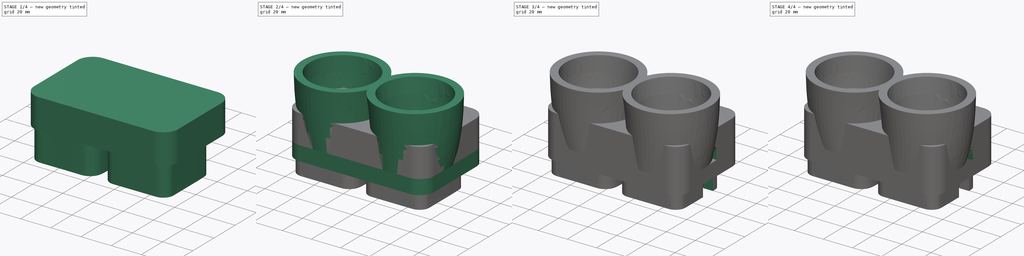
[diagram: build sequence overview — one tinted view per stage of 4, left to right]
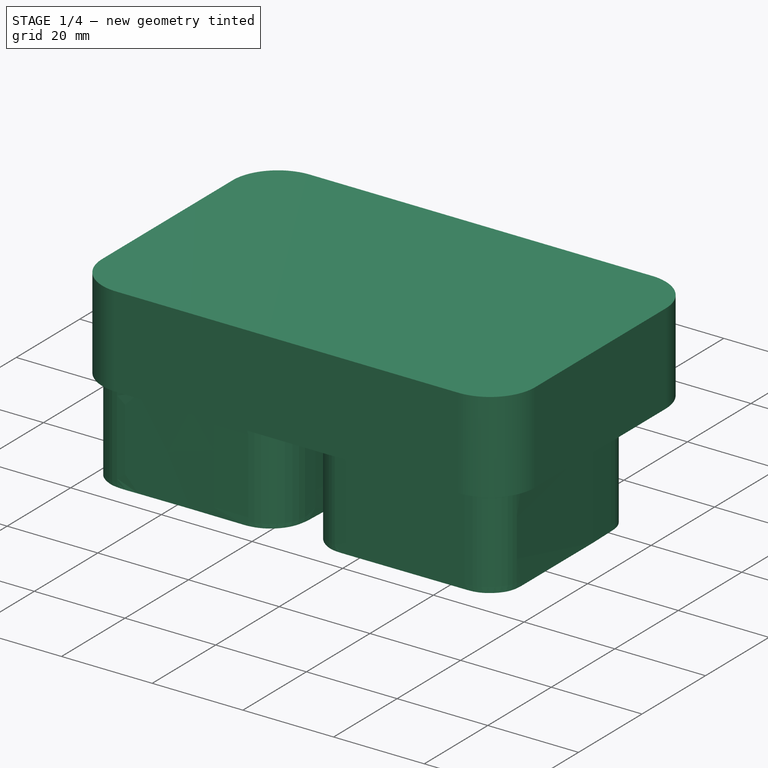
[diagram: stage 1 of 4 — iso view after this stage's code; geometry added in this stage tinted green]
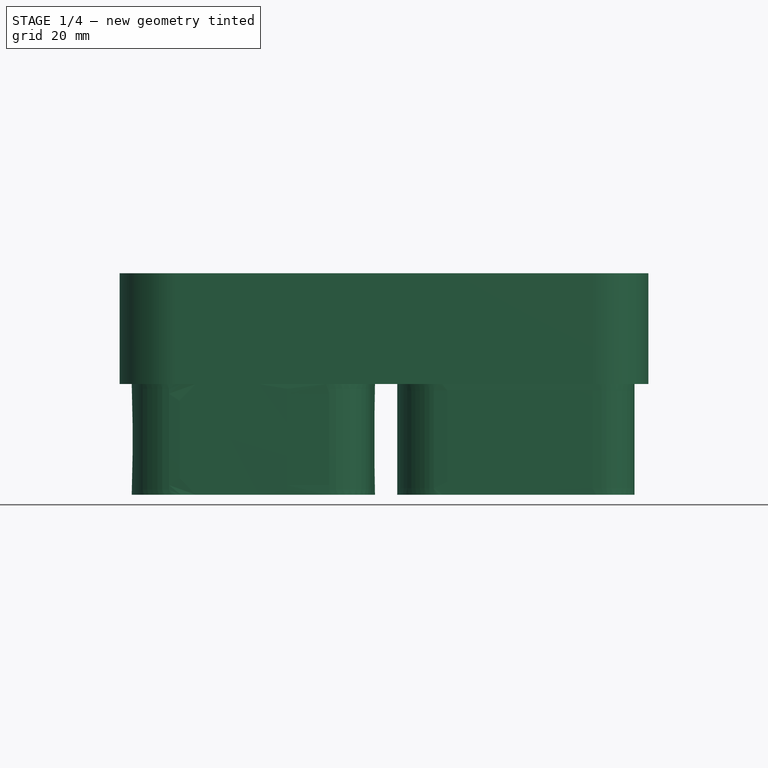
[diagram: stage 1 of 4 — front view after this stage's code; geometry added in this stage tinted green]
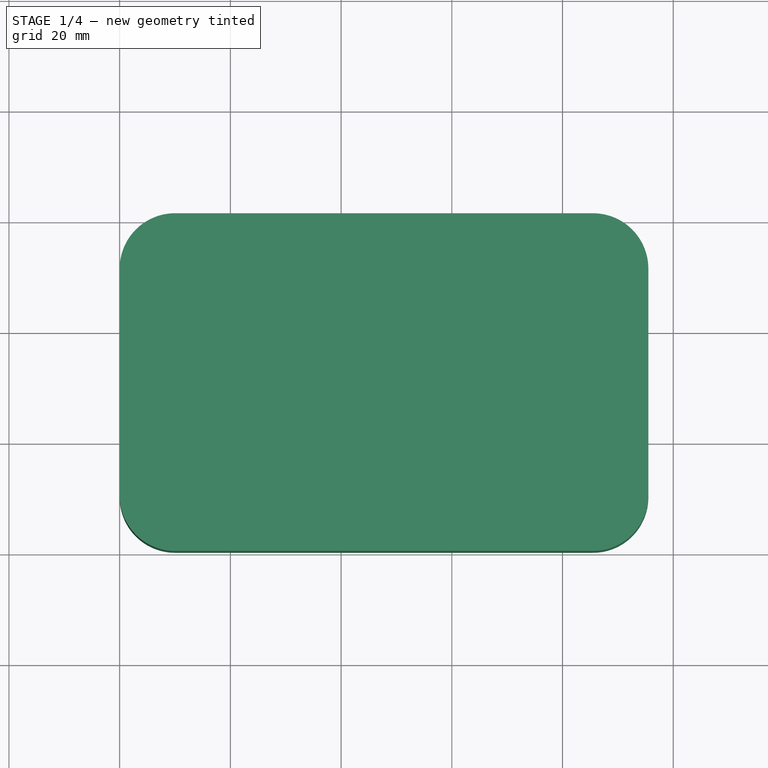
[diagram: stage 1 of 4 — top view after this stage's code; geometry added in this stage tinted green]
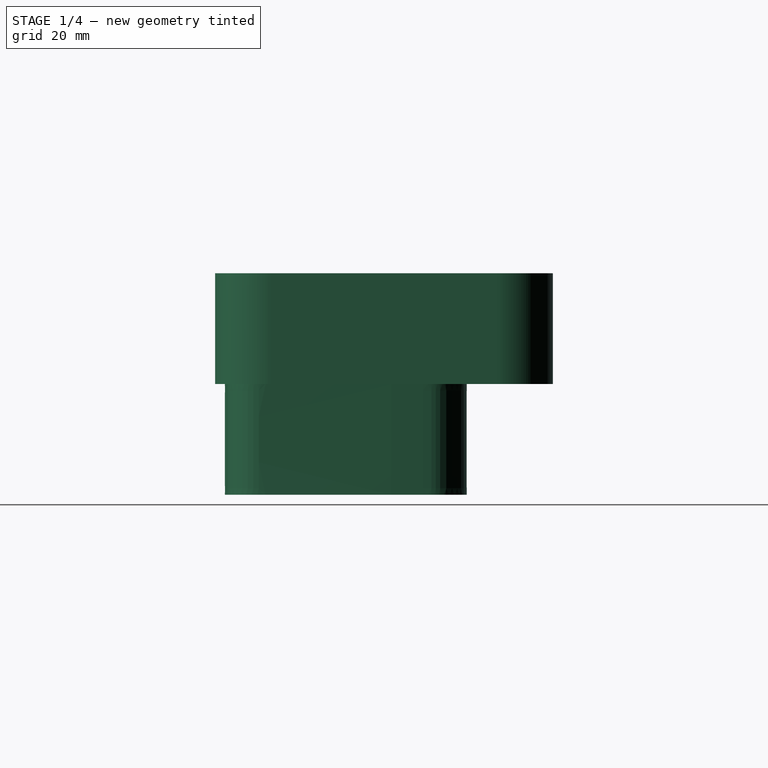
[diagram: stage 1 of 4 — right view after this stage's code; geometry added in this stage tinted green]
FCSTD DOCUMENT  (FreeCAD 0.22R36526 (Git))
Label: Weber3236Adaptor3
License: All rights reserved
LicenseURL: http://en.wikipedia.org/wiki/All_rights_reserved
objects: Sketcher::SketchObject×14, PartDesign::Pad×4, PartDesign::Pocket×4, PartDesign::Body×2, PartDesign::AdditiveLoft×2
note: 36 computed .brp shape members not serialized (recipe doc carries the construction recipe); baked Part::Feature solids carry a one-line shape summary decoded from their .brp

FEATURE [Sketcher::SketchObject] Sketch009  label="TopSurface"
  AttachmentSupport = -> [XY_Plane002]
  FullyConstrained = true
  MapMode = 5
  sketch-geometry (10):
    g0: LineSegment StartX=10 StartY=0 StartZ=0 EndX=85.5 EndY=0 EndZ=0
    g1: LineSegment StartX=95.5 StartY=10 StartZ=0 EndX=95.5 EndY=51 EndZ=0
    g2: LineSegment StartX=85.5 StartY=61 StartZ=0 EndX=10 EndY=61 EndZ=0
    g3: LineSegment StartX=0 StartY=51 StartZ=0 EndX=0 EndY=10 EndZ=0
    g4: ArcOfCircle CenterX=10 CenterY=10 CenterZ=0 NormalX=0 NormalY=0 NormalZ=1 AngleXU=0 Radius=10 StartAngle=3.14159 EndAngle=4.71239
    g5: ArcOfCircle CenterX=85.5 CenterY=10 CenterZ=0 NormalX=0 NormalY=0 NormalZ=1 AngleXU=0 Radius=10 StartAngle=4.71239 EndAngle=6.28319
    g6: ArcOfCircle CenterX=85.5 CenterY=51 CenterZ=0 NormalX=0 NormalY=0 NormalZ=1 AngleXU=0 Radius=10 StartAngle=0 EndAngle=1.5708
    g7: ArcOfCircle CenterX=10 CenterY=51 CenterZ=0 NormalX=0 NormalY=0 NormalZ=1 AngleXU=0 Radius=10 StartAngle=1.5708 EndAngle=3.14159
    g8: GeomPoint X=0 Y=0 Z=0
    g9: GeomPoint X=95.5 Y=61 Z=0
  constraints (23):
    c: Tangent(g0,g4) = -1.5708
    c: Tangent(g0,g5) = -1.5708
    c: Tangent(g1,g5) = -1.5708
    c: Tangent(g1,g6) = -1.5708
    c: Tangent(g2,g6) = -1.5708
    c: Tangent(g2,g7) = -1.5708
    c: Tangent(g3,g7) = -1.5708
    c: Tangent(g3,g4) = -1.5708
    c: Horizontal(g0)
    c: Horizontal(g2)
    c: Vertical(g1)
    c: Vertical(g3)
    c: Equal(g4,g5)
    c: Equal(g5,g6)
    c: Equal(g6,g7)
    c: PointOnObject(g8,g0)
    c: PointOnObject(g8,g3)
    c: PointOnObject(g9,g1)
    c: PointOnObject(g9,g2)
    c: Radius(g5) = 10
    c: Coincident(g8,g-1)
    c: DistanceY(g0,g2) = 61
    c: DistanceX(g3,g1) = 95.5
FEATURE [PartDesign::Pad] Pad002
  Direction = (0,0,1)
  Length = 20
  Length2 = 10
  Profile = -> Sketch009
  ReferenceAxis = -> Sketch009 [N_Axis]
  Suppressed = false
  Type = 0
FEATURE [Sketcher::SketchObject] Sketch004  label="ShapeIntoCarb"
  FullyConstrained = false
  MapMode = 5
  Placement = pos=(0,0,0) rot=(1,0,0;3.14159rad)
  sketch-geometry (90):
    g0-g23: GeomPoint x24 (B-spline internal-alignment scaffolding for g24; pole/knot coordinates omitted)
    g24: BSplineCurve PolesCount=26 KnotsCount=24 Degree=3 IsPeriodic=0
    g25-g50: Circle x26 (B-spline internal-alignment scaffolding for g24; pole/knot coordinates omitted)
    g51-g68: GeomPoint x18 (B-spline internal-alignment scaffolding for g69; pole/knot coordinates omitted)
    g69: BSplineCurve PolesCount=20 KnotsCount=18 Degree=3 IsPeriodic=0
    g70-g89: Circle x20 (B-spline internal-alignment scaffolding for g69; pole/knot coordinates omitted)
  constraints (96):
    c: Coincident(g24,g0)
    c: InternalAlignment(g0-g23 -> g24) x24
    c: InternalAlignment(g25,g24)
    c: Weight(g25) = 1
    c: InternalAlignment(g26,g24)
    c: Equal(g26,g25)
    c: InternalAlignment(g27,g24)
    c: Equal(g27,g25)
    c: InternalAlignment(g28,g24)
    c: Equal(g28,g25)
    c: InternalAlignment(g29,g24)
    c: Equal(g29,g25)
    c: InternalAlignment(g30,g24)
    c: Equal(g30,g25)
    c: InternalAlignment(g31,g24)
    c: Equal(g31,g25)
    c: InternalAlignment(g32,g24)
    c: Equal(g32,g25)
    c: InternalAlignment(g33,g24)
    c: Equal(g33,g25)
    c: InternalAlignment(g34,g24)
    c: Equal(g34,g25)
    c: InternalAlignment(g35,g24)
    c: Equal(g35,g25)
    c: InternalAlignment(g36,g24)
    c: Equal(g36,g25)
    c: InternalAlignment(g37,g24)
    c: Equal(g37,g25)
    c: InternalAlignment(g38,g24)
    c: Equal(g38,g25)
    c: InternalAlignment(g39,g24)
    c: Equal(g39,g25)
    c: InternalAlignment(g40,g24)
    c: Equal(g40,g25)
    c: InternalAlignment(g41,g24)
    c: Equal(g41,g25)
    c: InternalAlignment(g42,g24)
    c: Equal(g42,g25)
    c: InternalAlignment(g43,g24)
    c: Equal(g43,g25)
    c: InternalAlignment(g44,g24)
    c: Equal(g44,g25)
    c: InternalAlignment(g45,g24)
    c: Equal(g45,g25)
    c: InternalAlignment(g46,g24)
    c: Equal(g46,g25)
    c: InternalAlignment(g47,g24)
    c: Equal(g47,g25)
    c: InternalAlignment(g48,g24)
    c: Equal(g48,g25)
    c: InternalAlignment(g49,g24)
    c: Equal(g49,g25)
    c: InternalAlignment(g50,g24)
    c: Equal(g50,g25)
    c: Coincident(g69,g51)
    c: InternalAlignment(g51-g68 -> g69) x18
    c: InternalAlignment(g70,g69)
    c: Weight(g70) = 1
    c: InternalAlignment(g71,g69)
    c: Equal(g71,g70)
    c: InternalAlignment(g72,g69)
    c: Equal(g72,g70)
    c: InternalAlignment(g73,g69)
    c: Equal(g73,g70)
    c: InternalAlignment(g74,g69)
    c: Equal(g74,g70)
    c: InternalAlignment(g75,g69)
    c: Equal(g75,g70)
    c: InternalAlignment(g76,g69)
    c: Equal(g76,g70)
    c: InternalAlignment(g77,g69)
    c: Equal(g77,g70)
    c: InternalAlignment(g78,g69)
    c: Equal(g78,g70)
    c: InternalAlignment(g79,g69)
    c: Equal(g79,g70)
    c: InternalAlignment(g80,g69)
    c: Equal(g80,g70)
    c: InternalAlignment(g81,g69)
    c: Equal(g81,g70)
    c: InternalAlignment(g82,g69)
    c: Equal(g82,g70)
    c: InternalAlignment(g83,g69)
    c: Equal(g83,g70)
    c: InternalAlignment(g84,g69)
    c: Equal(g84,g70)
    c: InternalAlignment(g85,g69)
    c: Equal(g85,g70)
    c: InternalAlignment(g86,g69)
    c: Equal(g86,g70)
    c: InternalAlignment(g87,g69)
    c: Equal(g87,g70)
    c: InternalAlignment(g88,g69)
    c: Equal(g88,g70)
    c: InternalAlignment(g89,g69)
    c: Equal(g89,g70)
FEATURE [PartDesign::Pad] Pad003
  BaseFeature = -> Pad002
  Direction = (0,0,-1)
  Length = 20
  Length2 = 10
  Profile = -> Sketch004
  ReferenceAxis = -> Sketch004 [N_Axis]
  Suppressed = false
  Type = 0
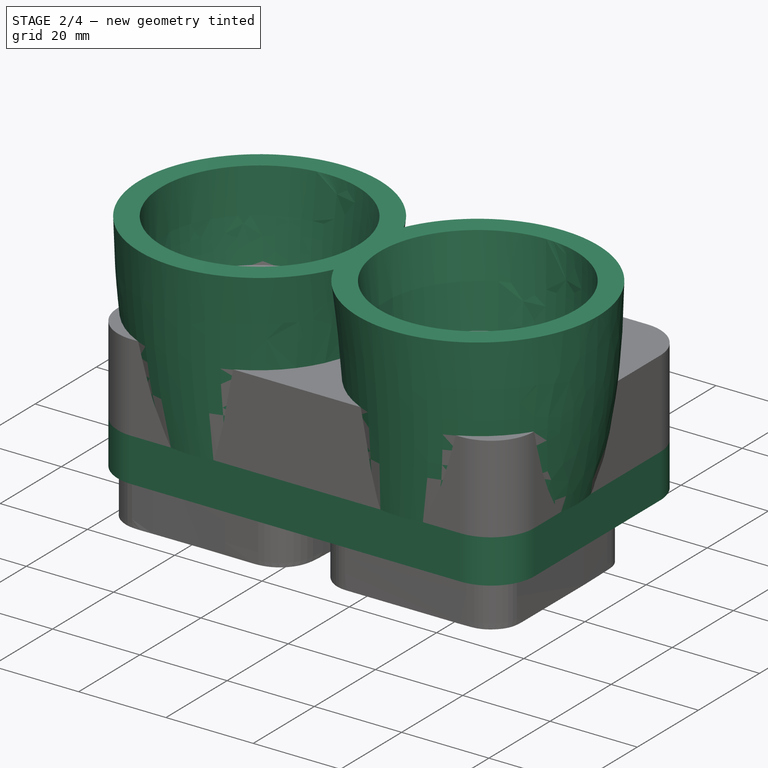
[diagram: stage 2 of 4 — iso view after this stage's code; geometry added in this stage tinted green]
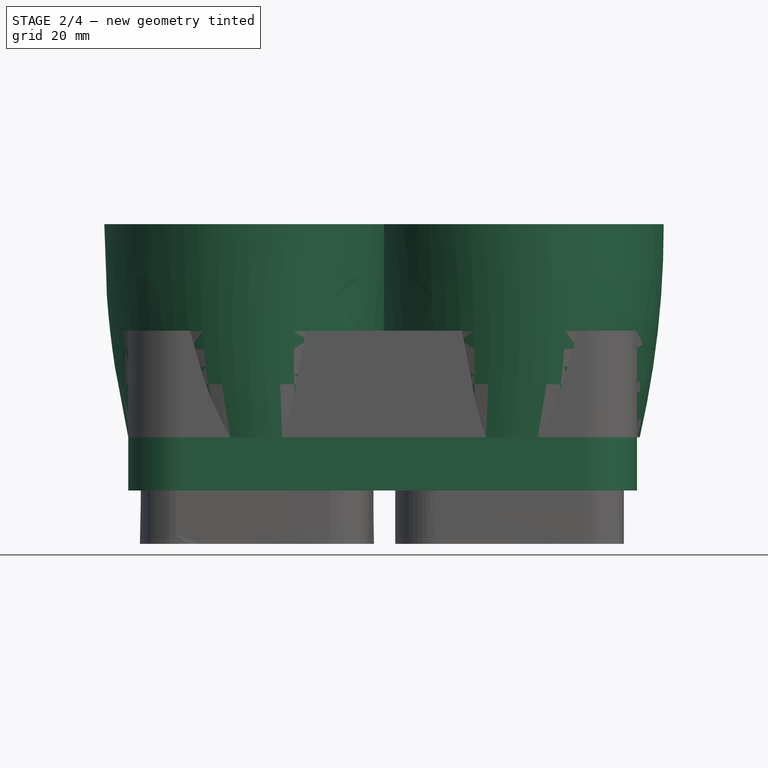
[diagram: stage 2 of 4 — front view after this stage's code; geometry added in this stage tinted green]
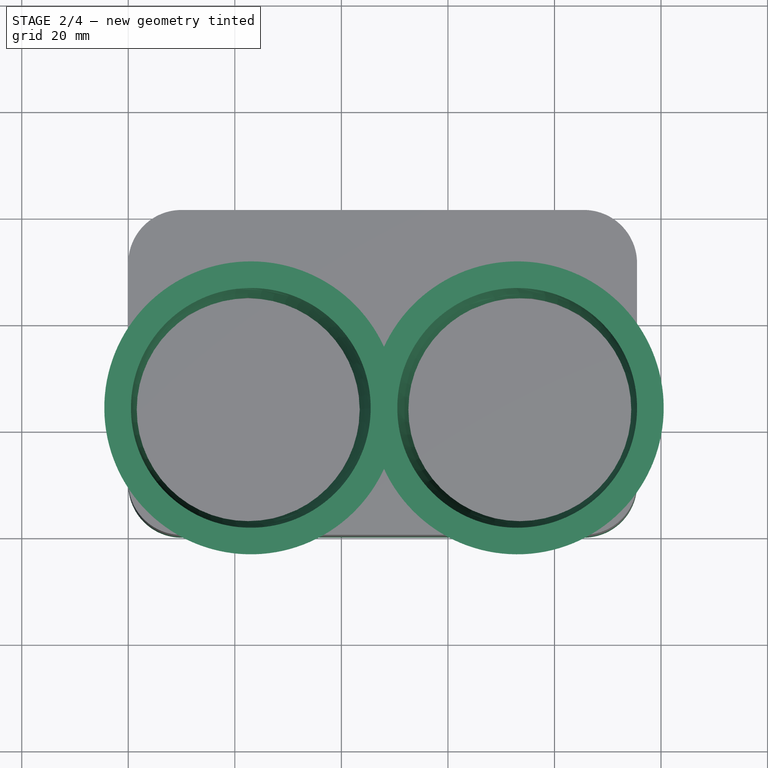
[diagram: stage 2 of 4 — top view after this stage's code; geometry added in this stage tinted green]
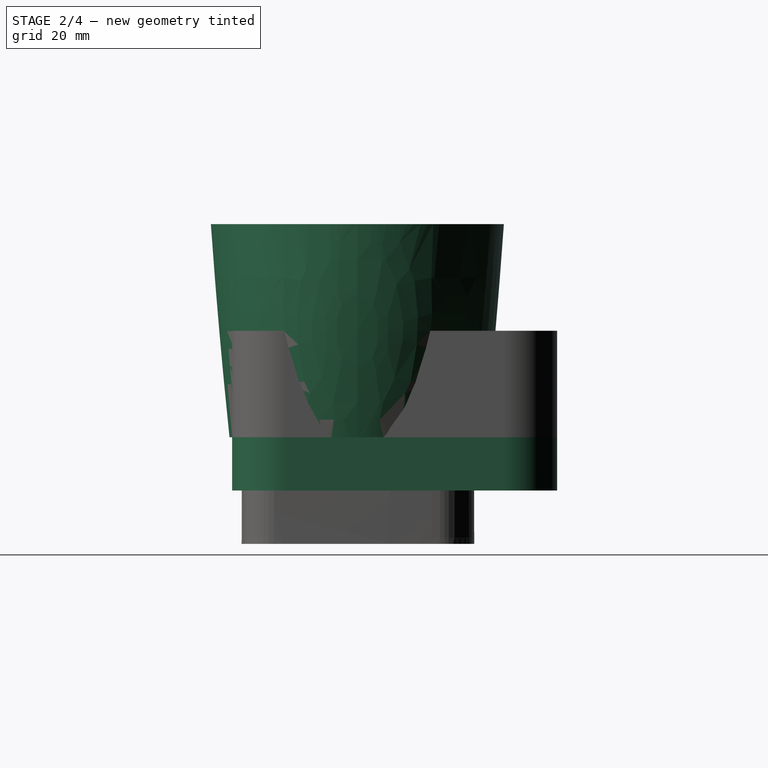
[diagram: stage 2 of 4 — right view after this stage's code; geometry added in this stage tinted green]
FEATURE [PartDesign::Body] Body002  label="CarbInsert"
  Group = -> [Sketch009,Pad002,Sketch004,Pad003,Sketch010,Pocket002,Sketch,Pocket,Sketch012,Pad004,Sketch013,Pocket003]
  Origin = -> Origin002
  Tip = -> Pocket003
FEATURE [Sketcher::SketchObject] Sketch023  label="BoreHoleLeft"
  AttachmentSupport = -> [XY_Plane003]
  FullyConstrained = true
  MapMode = 5
  sketch-geometry (2):
    g0: Circle CenterX=24 CenterY=23.5 CenterZ=0 NormalX=0 NormalY=0 NormalZ=1 AngleXU=0 Radius=19
    g1: Circle CenterX=24 CenterY=23.5 CenterZ=0 NormalX=0 NormalY=0 NormalZ=1 AngleXU=0 Radius=24
  constraints (5):
    c: Coincident(g1,g0)
    c: Diameter(g0) = 38
    c: Diameter(g1) = 48
    c: DistanceX(g-1,g0) = 24
    c: DistanceY(g-1,g0) = 23.5
FEATURE [Sketcher::SketchObject] Sketch019  label="LeftHole1"
  AttachmentOffset = pos=(0,0,10) rot=(0,0,1;0rad)
  AttachmentSupport = -> [XY_Plane003]
  ExternalGeometry = -> [Sketch023]
  FullyConstrained = true
  MapMode = 5
  Placement = pos=(0,0,10) rot=(0,0,1;0rad)
  sketch-geometry (2):
    g0: Circle CenterX=23 CenterY=23.5 CenterZ=0 NormalX=0 NormalY=0 NormalZ=1 AngleXU=0 Radius=20
    g1: Circle CenterX=23 CenterY=23.5 CenterZ=0 NormalX=0 NormalY=0 NormalZ=1 AngleXU=0 Radius=25
  constraints (5):
    c: Diameter(g0) = 40
    c: Diameter(g1) = 50
    c: Coincident(g0,g1)
    c: DistanceX(g0,g-3) = 1
    c: Horizontal(g-3,g0)
FEATURE [Sketcher::SketchObject] Sketch020  label="LeftHole2"
  AttachmentOffset = pos=(0,0,40) rot=(0,0,1;0rad)
  AttachmentSupport = -> [XY_Plane003]
  ExternalGeometry = -> [Sketch019]
  FullyConstrained = true
  MapMode = 5
  Placement = pos=(0,0,40) rot=(0,0,1;0rad)
  sketch-geometry (2):
    g0: Circle CenterX=23 CenterY=23.5 CenterZ=0 NormalX=0 NormalY=0 NormalZ=1 AngleXU=0 Radius=22.5
    g1: Circle CenterX=23 CenterY=23.5 CenterZ=0 NormalX=0 NormalY=0 NormalZ=1 AngleXU=0 Radius=27.5
  constraints (4):
    c: Coincident(g0,g-3)
    c: Diameter(g0) = 45
    c: Coincident(g1,g0)
    c: Diameter(g1) = 55
FEATURE [Sketcher::SketchObject] Sketch024  label="BoreHoleRight"
  AttachmentSupport = -> [XY_Plane003]
  FullyConstrained = true
  MapMode = 5
  sketch-geometry (2):
    g0: Circle CenterX=72 CenterY=23.5 CenterZ=0 NormalX=0 NormalY=0 NormalZ=1 AngleXU=0 Radius=19
    g1: Circle CenterX=72 CenterY=23.5 CenterZ=0 NormalX=0 NormalY=0 NormalZ=1 AngleXU=0 Radius=24
  constraints (5):
    c: Diameter(g0) = 38
    c: Coincident(g1,g0)
    c: Diameter(g1) = 48
    c: DistanceY(g-1,g0) = 23.5
    c: DistanceX(g-1,g0) = 72
FEATURE [Sketcher::SketchObject] Sketch021  label="RightHole1"
  AttachmentOffset = pos=(0,0,10) rot=(0,0,1;0rad)
  AttachmentSupport = -> [XY_Plane003]
  ExternalGeometry = -> [Sketch024]
  FullyConstrained = true
  MapMode = 5
  Placement = pos=(0,0,10) rot=(0,0,1;0rad)
  sketch-geometry (2):
    g0: Circle CenterX=73 CenterY=23.5 CenterZ=0 NormalX=0 NormalY=0 NormalZ=1 AngleXU=0 Radius=20
    g1: Circle CenterX=73 CenterY=23.5 CenterZ=0 NormalX=0 NormalY=0 NormalZ=1 AngleXU=0 Radius=25
  constraints (5):
    c: Diameter(g0) = 40
    c: Coincident(g1,g0)
    c: Diameter(g1) = 50
    c: Horizontal(g-3,g0)
    c: DistanceX(g-3,g0) = 1
FEATURE [Sketcher::SketchObject] Sketch022  label="RightHole2"
  AttachmentOffset = pos=(0,0,40) rot=(0,0,1;0rad)
  AttachmentSupport = -> [XY_Plane003]
  ExternalGeometry = -> [Sketch021]
  FullyConstrained = true
  MapMode = 5
  Placement = pos=(0,0,40) rot=(0,0,1;0rad)
  sketch-geometry (2):
    g0: Circle CenterX=73 CenterY=23.5 CenterZ=0 NormalX=0 NormalY=0 NormalZ=1 AngleXU=0 Radius=22.5
    g1: Circle CenterX=73 CenterY=23.5 CenterZ=0 NormalX=0 NormalY=0 NormalZ=1 AngleXU=0 Radius=27.5
  constraints (4):
    c: Coincident(g0,g-3)
    c: Diameter(g0) = 45
    c: Coincident(g1,g0)
    c: Diameter(g1) = 55
FEATURE [PartDesign::AdditiveLoft] AdditiveLoft
  Closed = false
  Profile = -> Sketch023
  Ruled = false
  Sections = -> [Sketch019,Sketch020]
  Suppressed = false
FEATURE [PartDesign::AdditiveLoft] AdditiveLoft001
  BaseFeature = -> AdditiveLoft
  Closed = false
  Profile = -> Sketch024
  Ruled = false
  Sections = -> [Sketch021,Sketch022]
  Suppressed = false
FEATURE [Sketcher::SketchObject] Sketch025  label="TopSurface001"
  AttachmentSupport = -> [XY_Plane003]
  FullyConstrained = true
  MapMode = 5
  sketch-geometry (10):
    g0: LineSegment StartX=10 StartY=0 StartZ=0 EndX=85.5 EndY=0 EndZ=0
    g1: LineSegment StartX=95.5 StartY=10 StartZ=0 EndX=95.5 EndY=51 EndZ=0
    g2: LineSegment StartX=85.5 StartY=61 StartZ=0 EndX=10 EndY=61 EndZ=0
    g3: LineSegment StartX=0 StartY=51 StartZ=0 EndX=0 EndY=10 EndZ=0
    g4: ArcOfCircle CenterX=10 CenterY=10 CenterZ=0 NormalX=0 NormalY=0 NormalZ=1 AngleXU=0 Radius=10 StartAngle=3.14159 EndAngle=4.71239
    g5: ArcOfCircle CenterX=85.5 CenterY=10 CenterZ=0 NormalX=0 NormalY=0 NormalZ=1 AngleXU=0 Radius=10 StartAngle=4.71239 EndAngle=6.28319
    g6: ArcOfCircle CenterX=85.5 CenterY=51 CenterZ=0 NormalX=0 NormalY=0 NormalZ=1 AngleXU=0 Radius=10 StartAngle=0 EndAngle=1.5708
    g7: ArcOfCircle CenterX=10 CenterY=51 CenterZ=0 NormalX=0 NormalY=0 NormalZ=1 AngleXU=0 Radius=10 StartAngle=1.5708 EndAngle=3.14159
    g8: GeomPoint X=0 Y=0 Z=0
    g9: GeomPoint X=95.5 Y=61 Z=0
  constraints (23):
    c: Tangent(g0,g4) = -1.5708
    c: Tangent(g0,g5) = -1.5708
    c: Tangent(g1,g5) = -1.5708
    c: Tangent(g1,g6) = -1.5708
    c: Tangent(g2,g6) = -1.5708
    c: Tangent(g2,g7) = -1.5708
    c: Tangent(g3,g7) = -1.5708
    c: Tangent(g3,g4) = -1.5708
    c: Horizontal(g0)
    c: Horizontal(g2)
    c: Vertical(g1)
    c: Vertical(g3)
    c: Equal(g4,g5)
    c: Equal(g5,g6)
    c: Equal(g6,g7)
    c: PointOnObject(g8,g0)
    c: PointOnObject(g8,g3)
    c: PointOnObject(g9,g1)
    c: PointOnObject(g9,g2)
    c: Radius(g5) = 10
    c: Coincident(g8,g-1)
    c: DistanceY(g0,g2) = 61
    c: DistanceX(g3,g1) = 95.5
FEATURE [PartDesign::Pad] Pad
  BaseFeature = -> AdditiveLoft001
  Direction = (0,0,1)
  Length = 10
  Length2 = 10
  Profile = -> Sketch025
  ReferenceAxis = -> Sketch025 [N_Axis]
  Reversed = true
  Suppressed = false
  Type = 0
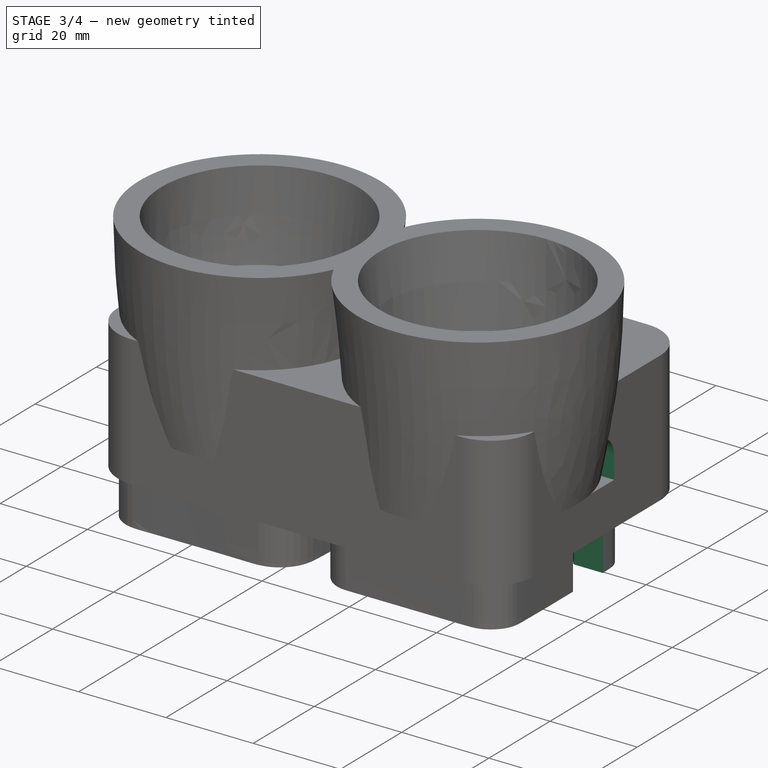
[diagram: stage 3 of 4 — iso view after this stage's code; geometry added in this stage tinted green]
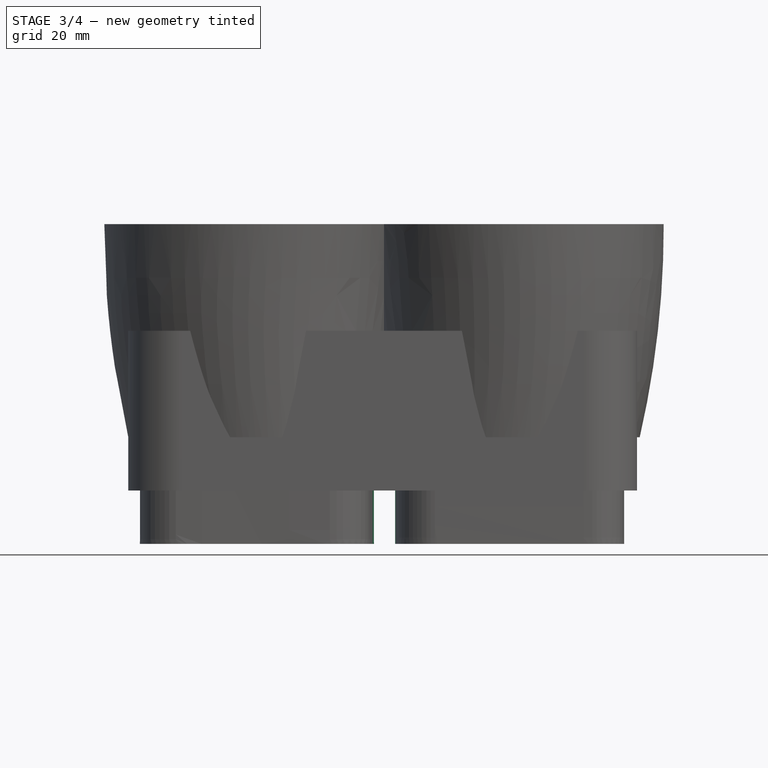
[diagram: stage 3 of 4 — front view after this stage's code; geometry added in this stage tinted green]
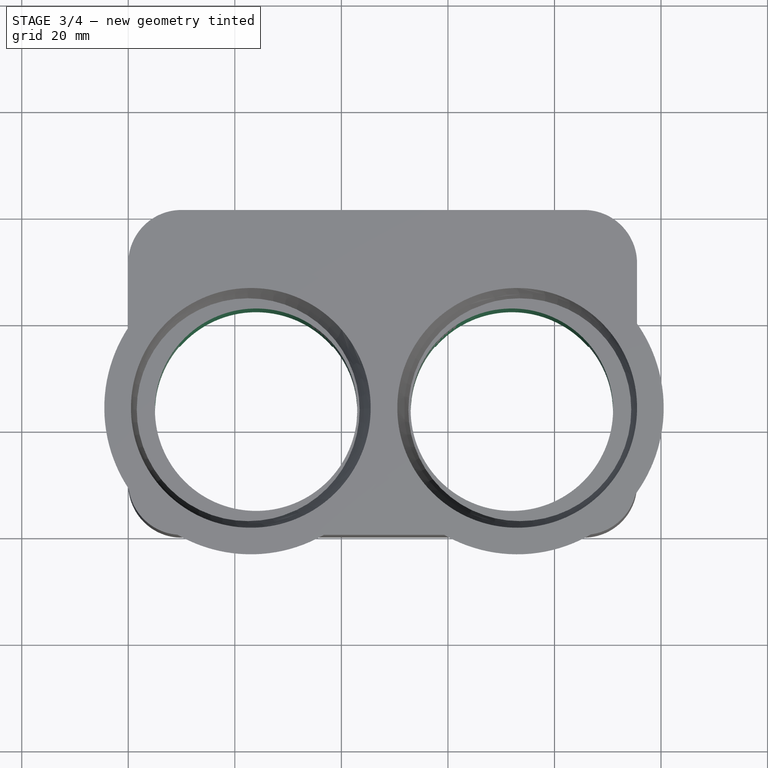
[diagram: stage 3 of 4 — top view after this stage's code; geometry added in this stage tinted green]
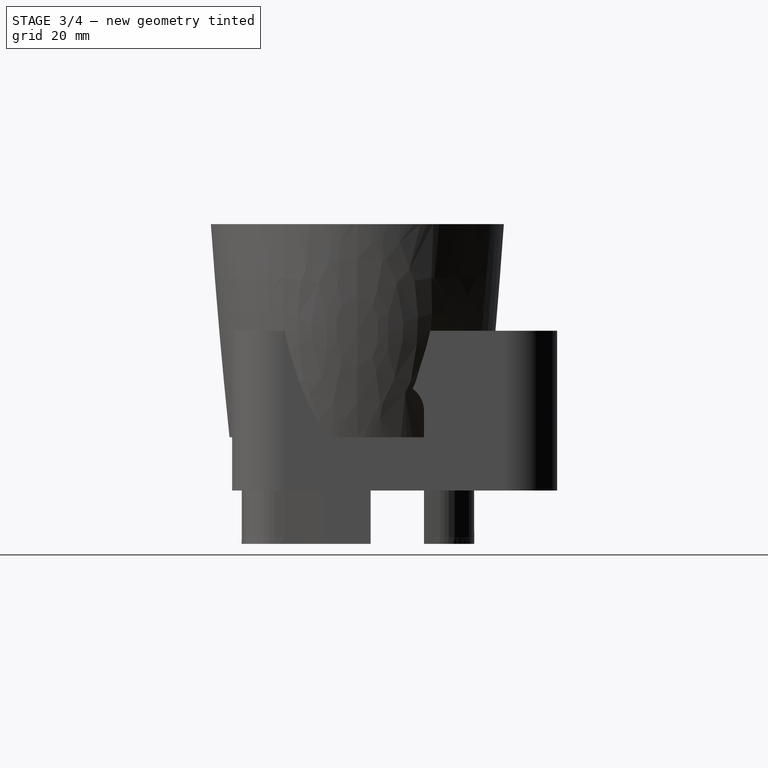
[diagram: stage 3 of 4 — right view after this stage's code; geometry added in this stage tinted green]
FEATURE [Sketcher::SketchObject] Sketch010  label="BoreHoles"
  AttachmentSupport = -> [Pad003]
  ExternalGeometry = -> [Pad003]
  FullyConstrained = true
  MapMode = 5
  Placement = pos=(0,0,-20) rot=(1,0,0;3.14159rad)
  sketch-geometry (2):
    g0: Circle CenterX=24 CenterY=-23.5 CenterZ=0 NormalX=0 NormalY=0 NormalZ=1 AngleXU=0 Radius=19
    g1: Circle CenterX=72 CenterY=-23.5 CenterZ=0 NormalX=0 NormalY=0 NormalZ=1 AngleXU=0 Radius=19
  constraints (6):
    c: Diameter(g0) = 38
    c: Diameter(g1) = 38
    c: DistanceY(g0,g-1) = 23.5
    c: DistanceY(g1,g-1) = 23.5
    c: DistanceX(g-1,g0) = 24
    c: DistanceX(g-1,g1) = 72
FEATURE [PartDesign::Pocket] Pocket002  label="BoreHoles001"
  BaseFeature = -> Pad003
  Direction = (0,0,1)
  Length = 5
  Length2 = 5
  Profile = -> Sketch010
  ReferenceAxis = -> Sketch010 [N_Axis]
  Suppressed = false
  Type = 1
FEATURE [Sketcher::SketchObject] Sketch
  AttachmentSupport = -> [Pocket002]
  FullyConstrained = true
  MapMode = 5
  Placement = pos=(0,0,0) rot=(0.57735,-0.57735,-0.57735;2.0944rad)
  sketch-geometry (4):
    g0: LineSegment StartX=-36 StartY=4.99999 StartZ=0 EndX=-36 EndY=-20 EndZ=0
    g1: LineSegment StartX=-26 StartY=4.99999 StartZ=0 EndX=-26 EndY=-20 EndZ=0
    g2: ArcOfCircle CenterX=-31 CenterY=5 CenterZ=0 NormalX=0 NormalY=0 NormalZ=1 AngleXU=0 Radius=5 StartAngle=6.28318 EndAngle=9.42478
    g3: LineSegment StartX=-36 StartY=-20 StartZ=0 EndX=-26 EndY=-20 EndZ=0
  constraints (13):
    c: Vertical(g0)
    c: Vertical(g1)
    c: DistanceY(g0,g0) = 25
    c: Equal(g1,g0)
    c: Horizontal(g0,g1)
    c: Coincident(g2,g0)
    c: Coincident(g2,g1)
    c: Radius(g2) = 5
    c: DistanceX(g0,g1) = 10
    c: Coincident(g3,g0)
    c: Coincident(g3,g1)
    c: DistanceX(g2,g-1) = 31
    c: DistanceY(g-1,g2) = 5
FEATURE [PartDesign::Pocket] Pocket
  BaseFeature = -> Pocket002
  Direction = (1,0,0)
  Length = 5
  Length2 = 5
  Profile = -> Sketch
  ReferenceAxis = -> Sketch [N_Axis]
  Suppressed = false
  Type = 1
FEATURE [Sketcher::SketchObject] Sketch026  label="BoreHoles002"
  AttachmentSupport = -> [Pad003]
  ExternalGeometry = -> [Pad003]
  FullyConstrained = true
  MapMode = 5
  Placement = pos=(0,0,-20) rot=(1,0,0;3.14159rad)
  sketch-geometry (2):
    g0: Circle CenterX=24 CenterY=-23.5 CenterZ=0 NormalX=0 NormalY=0 NormalZ=1 AngleXU=0 Radius=19
    g1: Circle CenterX=72 CenterY=-23.5 CenterZ=0 NormalX=0 NormalY=0 NormalZ=1 AngleXU=0 Radius=19
  constraints (6):
    c: Diameter(g0) = 38
    c: Diameter(g1) = 38
    c: DistanceY(g0,g-1) = 23.5
    c: DistanceY(g1,g-1) = 23.5
    c: DistanceX(g-1,g0) = 24
    c: DistanceX(g-1,g1) = 72
FEATURE [PartDesign::Pocket] Pocket004
  BaseFeature = -> Pad
  Direction = (0,0,1)
  Length = 5
  Length2 = 5
  Profile = -> Sketch026
  ReferenceAxis = -> Sketch026 [N_Axis]
  Suppressed = false
  Type = 1
FEATURE [PartDesign::Body] Body003  label="SynchroEnd"
  Group = -> [Sketch019,Sketch020,Sketch021,Sketch022,Sketch023,Sketch024,AdditiveLoft,AdditiveLoft001,Sketch025,Pad,Sketch026,Pocket004]
  Origin = -> Origin003
  Tip = -> Pocket004
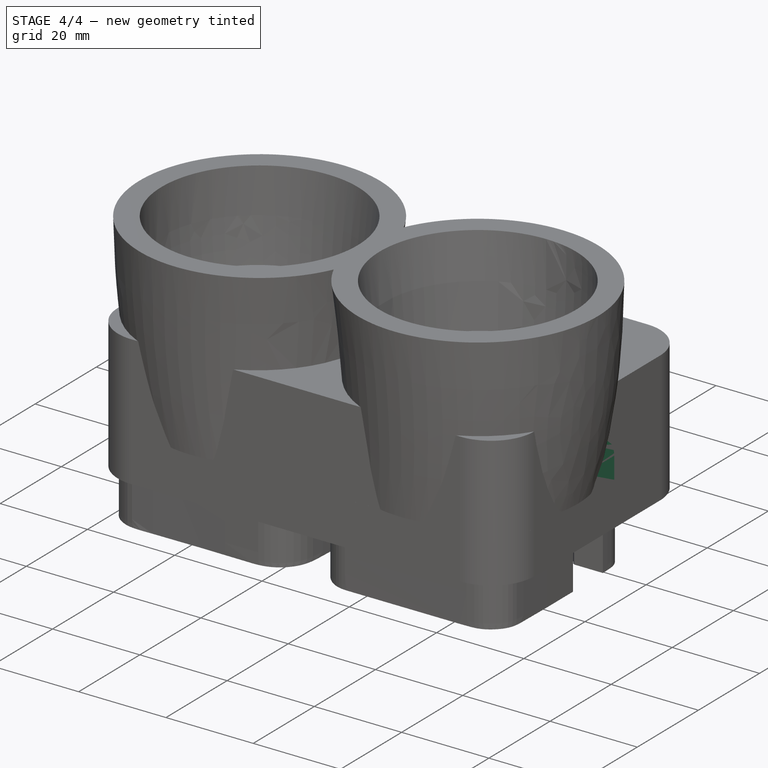
[diagram: stage 4 of 4 — iso view after this stage's code; geometry added in this stage tinted green]
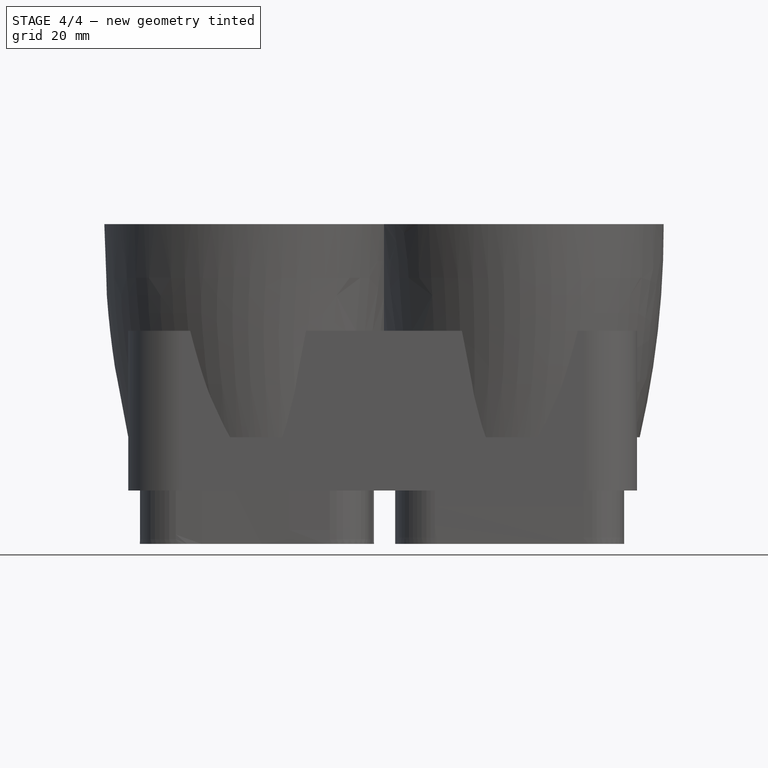
[diagram: stage 4 of 4 — front view after this stage's code; geometry added in this stage tinted green]
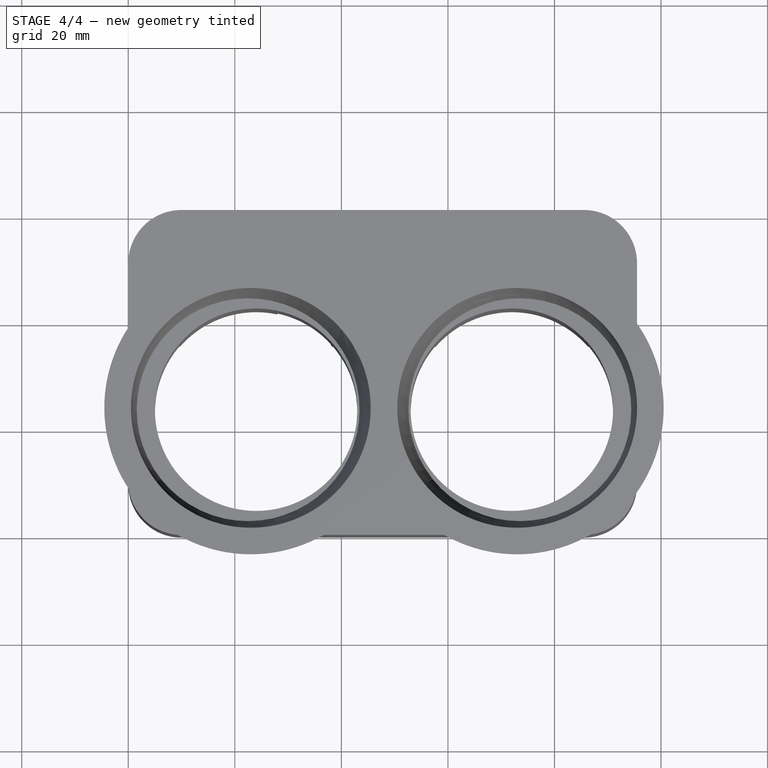
[diagram: stage 4 of 4 — top view after this stage's code; geometry added in this stage tinted green]
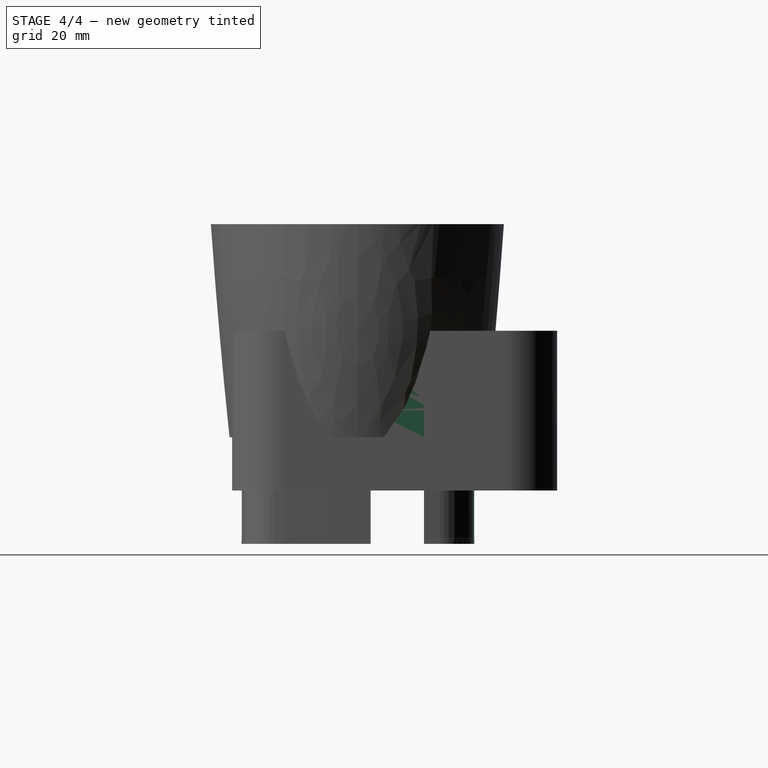
[diagram: stage 4 of 4 — right view after this stage's code; geometry added in this stage tinted green]
FEATURE [Sketcher::SketchObject] Sketch012
  FullyConstrained = false
  MapMode = 5
  Placement = pos=(0,0,0) rot=(1,0,0;3.14159rad)
  sketch-geometry (12):
    g0: LineSegment StartX=2.35555 StartY=-36 StartZ=0 EndX=2.35555 EndY=-26 EndZ=0
    g1: LineSegment StartX=2.35555 StartY=-26 StartZ=0 EndX=0 EndY=-26 EndZ=0
    g2: LineSegment StartX=0 StartY=-26 StartZ=0 EndX=0 EndY=-36 EndZ=0
    g3: LineSegment StartX=0 StartY=-36 StartZ=0 EndX=2.35555 EndY=-36 EndZ=0
    g4: LineSegment StartX=45.8318 StartY=-36 StartZ=0 EndX=50.1781 EndY=-36 EndZ=0
    g5: LineSegment StartX=50.1781 StartY=-36 StartZ=0 EndX=50.1781 EndY=-26 EndZ=0
    g6: LineSegment StartX=50.1781 StartY=-26 StartZ=0 EndX=45.8318 EndY=-26 EndZ=0
    g7: LineSegment StartX=45.8318 StartY=-26 StartZ=0 EndX=45.8318 EndY=-36 EndZ=0
    g8: LineSegment StartX=95.5 StartY=-36 StartZ=0 EndX=95.5 EndY=-26 EndZ=0
    g9: LineSegment StartX=95.5 StartY=-26 StartZ=0 EndX=92.9042 EndY=-26 EndZ=0
    g10: LineSegment StartX=92.9042 StartY=-26 StartZ=0 EndX=92.9042 EndY=-36 EndZ=0
    g11: LineSegment StartX=92.9042 StartY=-36 StartZ=0 EndX=95.5 EndY=-36 EndZ=0
  constraints (24):
    c: Coincident(g0,g1)
    c: Coincident(g1,g2)
    c: Coincident(g2,g3)
    c: Coincident(g3,g0)
    c: Vertical(g0)
    c: Vertical(g2)
    c: Horizontal(g1)
    c: Horizontal(g3)
    c: Coincident(g4,g5)
    c: Coincident(g5,g6)
    c: Coincident(g6,g7)
    c: Coincident(g7,g4)
    c: Horizontal(g4)
    c: Horizontal(g6)
    c: Vertical(g5)
    c: Vertical(g7)
    c: Coincident(g8,g9)
    c: Coincident(g9,g10)
    c: Coincident(g10,g11)
    c: Coincident(g11,g8)
    c: Vertical(g8)
    c: Vertical(g10)
    c: Horizontal(g9)
    c: Horizontal(g11)
FEATURE [PartDesign::Pad] Pad004
  BaseFeature = -> Pocket
  Direction = (0,0,-1)
  Length = 12
  Length2 = 10
  Profile = -> Sketch012
  ReferenceAxis = -> Sketch012 [N_Axis]
  Reversed = true
  Suppressed = false
  Type = 0
FEATURE [Sketcher::SketchObject] Sketch013
  AttachmentSupport = -> [Pad004]
  FullyConstrained = false
  MapMode = 5
  Placement = pos=(0,61,0) rot=(0,0.707107,0.707107;3.14159rad)
  sketch-geometry (4):
    g0: LineSegment StartX=-38 StartY=-7 StartZ=0 EndX=-38 EndY=-38.3461 EndZ=0
    g1: LineSegment StartX=-38 StartY=-38.3461 StartZ=0 EndX=-28 EndY=-38.3461 EndZ=0
    g2: LineSegment StartX=-28 StartY=-38.3461 StartZ=0 EndX=-28 EndY=-7 EndZ=0
    g3: ArcOfCircle CenterX=-33 CenterY=-7.00002 CenterZ=0 NormalX=0 NormalY=0 NormalZ=1 AngleXU=0 Radius=5 StartAngle=3.76668e-06 EndAngle=3.14159
  constraints (12):
    c: Vertical(g0)
    c: Horizontal(g1)
    c: Coincident(g2,g1)
    c: Vertical(g2)
    c: DistanceX(g1,g1) = 10
    c: DistanceX(g1,g-1) = 28
    c: Equal(g0,g2)
    c: Coincident(g0,g1)
    c: Coincident(g3,g0)
    c: Coincident(g3,g2)
    c: Radius(g3) = 5
    c: DistanceY(g2,g-1) = 7
FEATURE [PartDesign::Pocket] Pocket003
  BaseFeature = -> Pad004
  Direction = (0,-1,2e-16)
  Length = 25
  Length2 = 5
  Profile = -> Sketch013
  ReferenceAxis = -> Sketch013 [N_Axis]
  Suppressed = false
  Type = 0
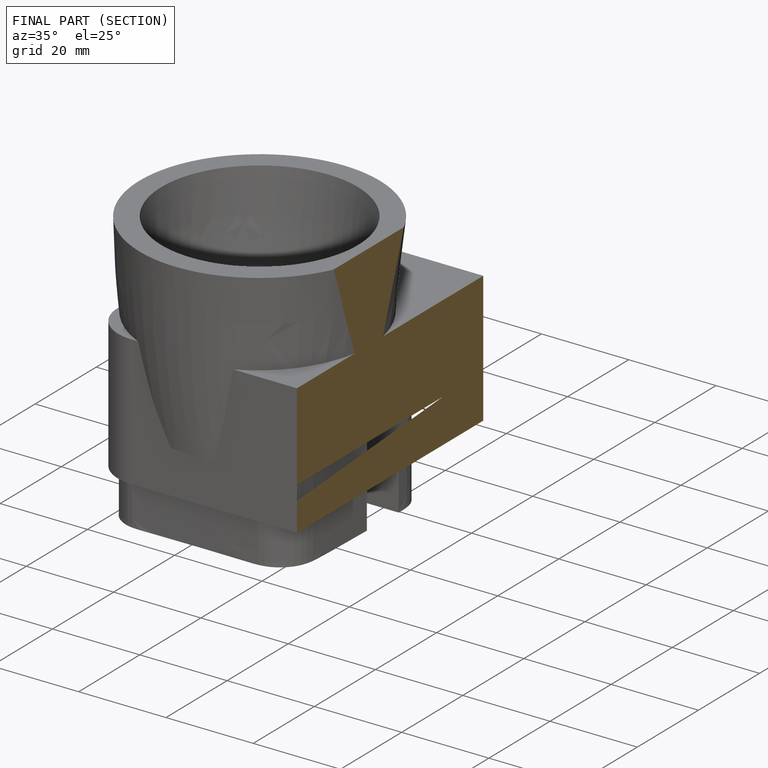
[diagram: finished part — half-section view (interior)]
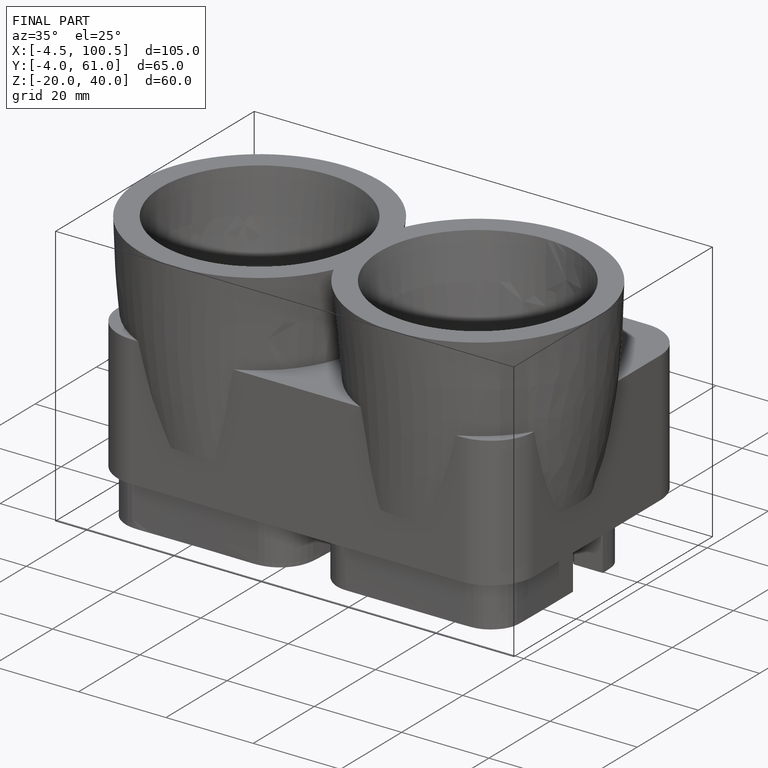
[diagram: finished part — iso view with bounding-box wireframe]
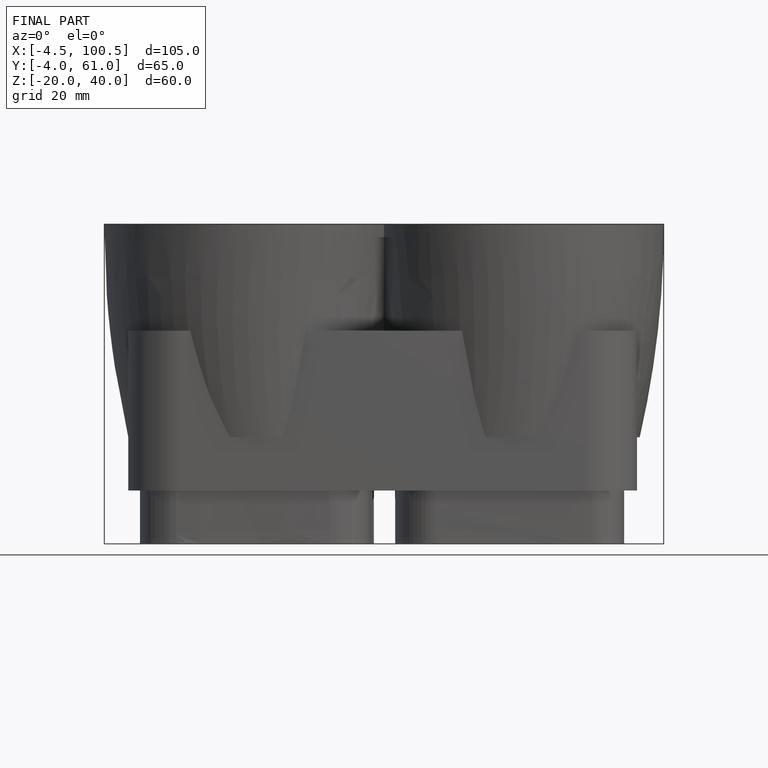
[diagram: finished part — front view with bounding-box wireframe]
